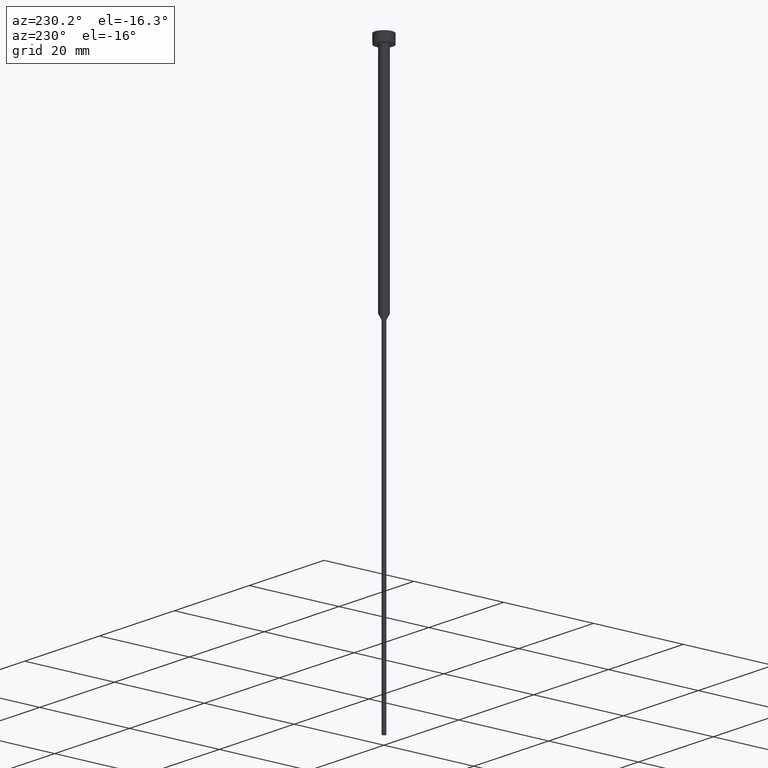
[diagram: clean part render]
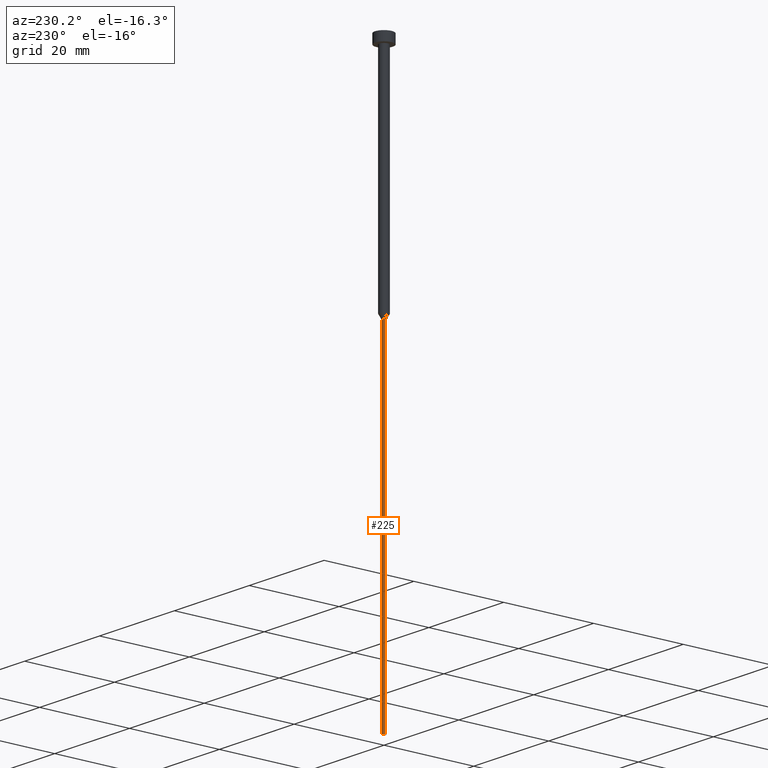
[diagram: same view with one face highlighted and labeled with its STEP entity id]
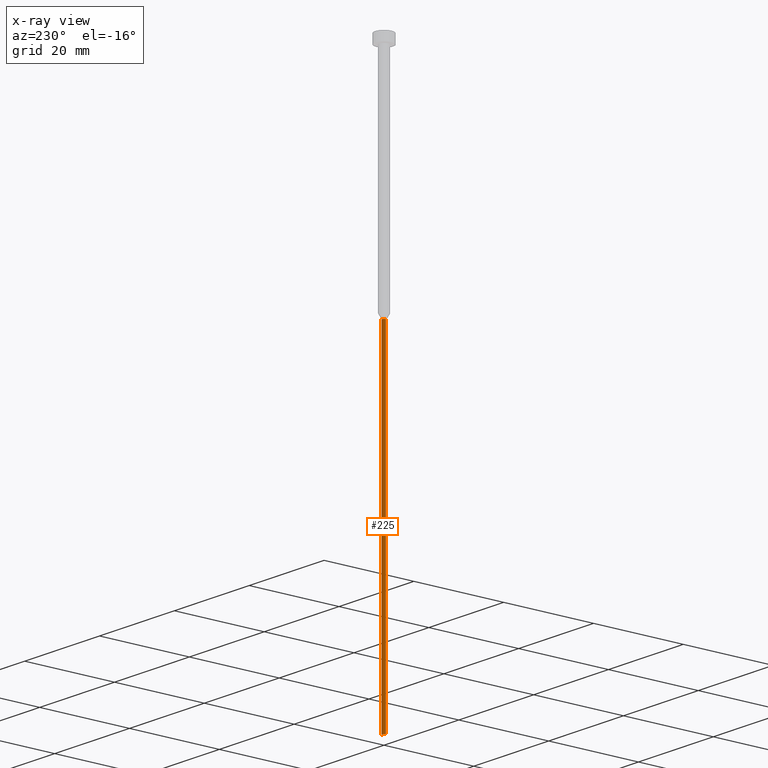
[diagram: x-ray of the same camera — body ghosted, the highlighted face saturated]
A machine part, auxiliary view. The second image highlights one B-rep face of the part: STEP entity #225.
The next image is the same camera in x-ray: the body ghosted, the highlighted face saturated — about 0% of this face is hidden behind the body in this view.
In plain terms, the highlighted cylindrical surface (edge-blend (fillet) strip) has radius 0.4 mm, axis along (-0, -0, 1).
Its self-contained STEP definition (entity closure, byte-faithful):
#2 = VECTOR ( 'NONE', #73, 1000.000000000000000 ) ;
#9 = CARTESIAN_POINT ( 'NONE',  ( 0.000000000000000000, 0.000000000000000000, 0.000000000000000000 ) ) ;
#12 = CARTESIAN_POINT ( 'NONE',  ( -0.4000000000000000777, 4.898587196589413692E-17, -125.0000000000000000 ) ) ;
#31 = CARTESIAN_POINT ( 'NONE',  ( -0.3999999999999999667, 4.898587196589412459E-17, -51.03923048454132783 ) ) ;
#40 = ORIENTED_EDGE ( 'NONE', *, *, #326, .T. ) ;
#48 = DIRECTION ( 'NONE',  ( 1.000000000000000000, 0.000000000000000000, 0.000000000000000000 ) ) ;
#54 = CARTESIAN_POINT ( 'NONE',  ( 0.3999999999999999667, 0.000000000000000000, 0.000000000000000000 ) ) ;
#56 = DIRECTION ( 'NONE',  ( -0.000000000000000000, -0.000000000000000000, 1.000000000000000000 ) ) ;
#59 = DIRECTION ( 'NONE',  ( 1.000000000000000000, 0.000000000000000000, 0.000000000000000000 ) ) ;
#67 = VERTEX_POINT ( 'NONE', #212 ) ;
#73 = DIRECTION ( 'NONE',  ( -0.000000000000000000, -0.000000000000000000, 1.000000000000000000 ) ) ;
#92 = DIRECTION ( 'NONE',  ( 1.000000000000000000, 0.000000000000000000, 0.000000000000000000 ) ) ;
#97 = DIRECTION ( 'NONE',  ( -0.000000000000000000, -0.000000000000000000, 1.000000000000000000 ) ) ;
#105 = CYLINDRICAL_SURFACE ( 'NONE', #315, 0.3999999999999999667 ) ;
#115 = VERTEX_POINT ( 'NONE', #31 ) ;
#116 = ORIENTED_EDGE ( 'NONE', *, *, #274, .F. ) ;
#177 = ORIENTED_EDGE ( 'NONE', *, *, #236, .T. ) ;
#180 = DIRECTION ( 'NONE',  ( -0.000000000000000000, -0.000000000000000000, 1.000000000000000000 ) ) ;
#202 = VERTEX_POINT ( 'NONE', #295 ) ;
#208 = LINE ( 'NONE', #54, #2 ) ;
#212 = CARTESIAN_POINT ( 'NONE',  ( 0.4000000000000000222, 0.000000000000000000, -125.0000000000000000 ) ) ;
#219 = LINE ( 'NONE', #337, #312 ) ;
#225 = ADVANCED_FACE ( 'NONE', ( #267 ), #105, .T. ) ;
#231 = ORIENTED_EDGE ( 'NONE', *, *, #351, .F. ) ;
#233 = VERTEX_POINT ( 'NONE', #12 ) ;
#234 = EDGE_LOOP ( 'NONE', ( #40, #177, #231, #116 ) ) ;
#236 = EDGE_CURVE ( 'NONE', #233, #115, #219, .T. ) ;
#237 = AXIS2_PLACEMENT_3D ( 'NONE', #305, #97, #92 ) ;
#263 = AXIS2_PLACEMENT_3D ( 'NONE', #324, #180, #48 ) ;
#267 = FACE_OUTER_BOUND ( 'NONE', #234, .T. ) ;
#274 = EDGE_CURVE ( 'NONE', #67, #202, #208, .T. ) ;
#276 = CIRCLE ( 'NONE', #237, 0.4000000000000000222 ) ;
#282 = CIRCLE ( 'NONE', #263, 0.3999999999999999667 ) ;
#295 = CARTESIAN_POINT ( 'NONE',  ( 0.3999999999999999667, 0.000000000000000000, -51.03923048454132783 ) ) ;
#305 = CARTESIAN_POINT ( 'NONE',  ( 0.000000000000000000, 0.000000000000000000, -125.0000000000000000 ) ) ;
#312 = VECTOR ( 'NONE', #56, 1000.000000000000000 ) ;
#315 = AXIS2_PLACEMENT_3D ( 'NONE', #9, #335, #59 ) ;
#324 = CARTESIAN_POINT ( 'NONE',  ( 0.000000000000000000, 0.000000000000000000, -51.03923048454132783 ) ) ;
#326 = EDGE_CURVE ( 'NONE', #67, #233, #276, .T. ) ;
#335 = DIRECTION ( 'NONE',  ( -0.000000000000000000, -0.000000000000000000, 1.000000000000000000 ) ) ;
#337 = CARTESIAN_POINT ( 'NONE',  ( -0.3999999999999999667, 4.898587196589412459E-17, 0.000000000000000000 ) ) ;
#351 = EDGE_CURVE ( 'NONE', #202, #115, #282, .T. ) ;